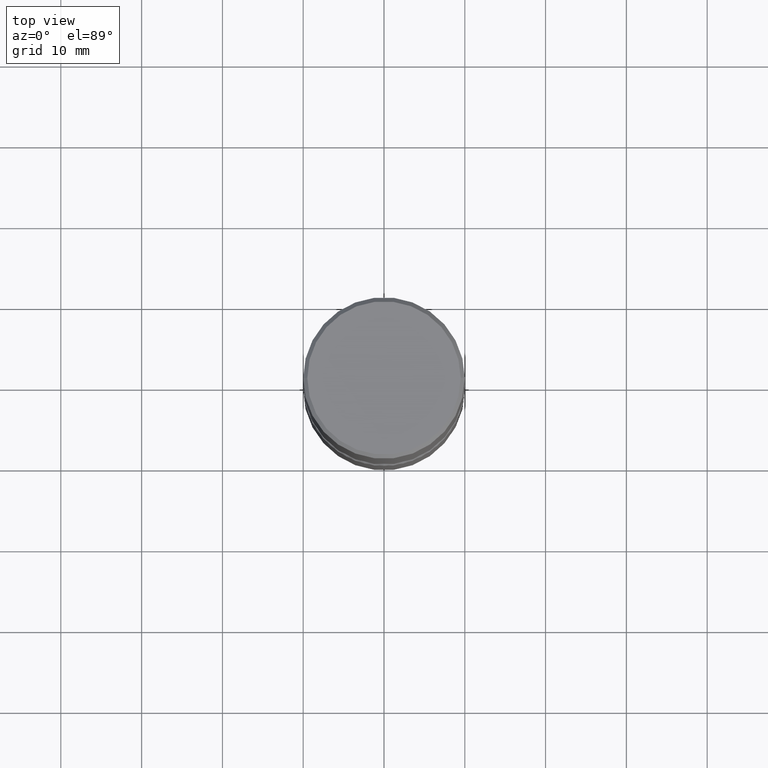
[diagram: clean part render]
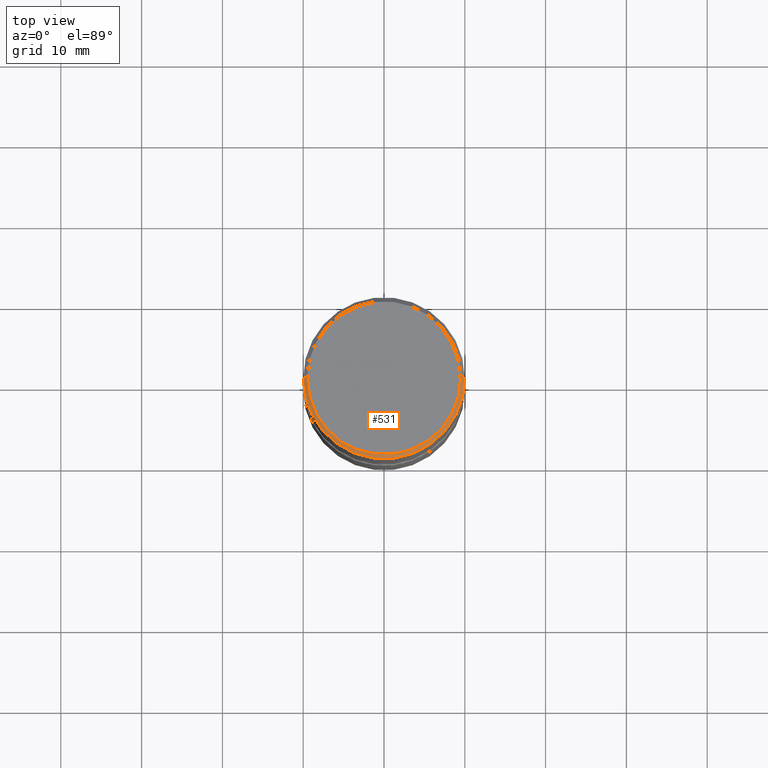
[diagram: same view with one face highlighted and labeled with its STEP entity id]
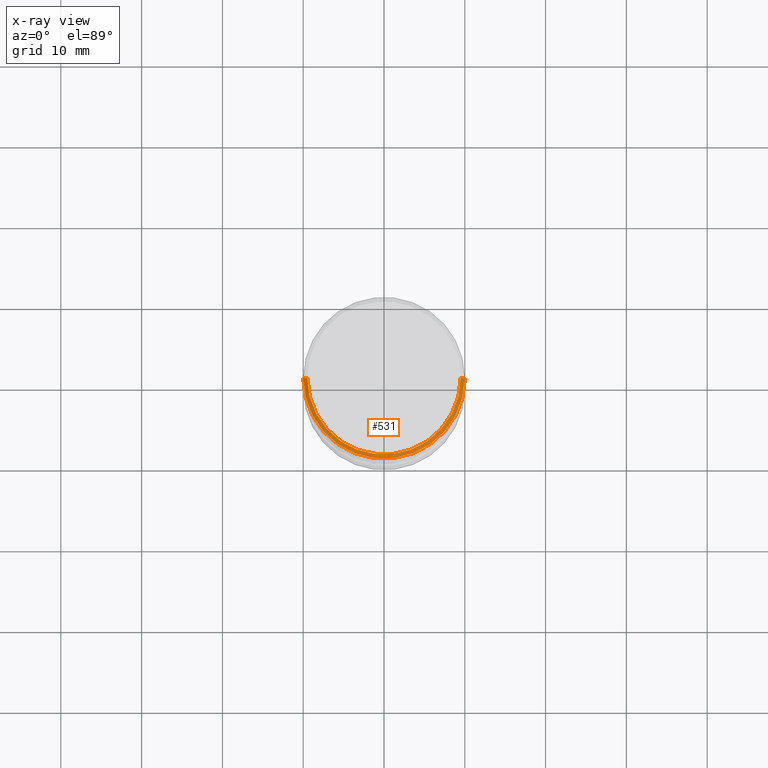
[diagram: x-ray of the same camera — body ghosted, the highlighted face saturated]
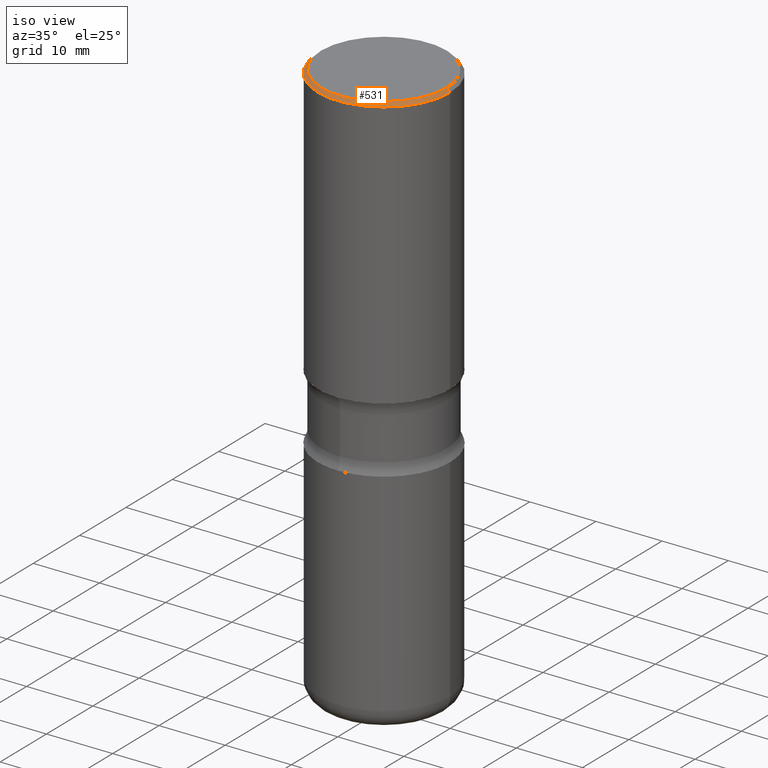
[diagram: same view with one face highlighted and labeled with its STEP entity id]
A machine part, top view. The second image highlights one B-rep face of the part: STEP entity #531.
The next image is the same camera in x-ray: the body ghosted, the highlighted face saturated — about 0% of this face is hidden behind the body in this view.
A second angle (iso view) of the same face is appended — the face is thin or edge-on in the first view.
In plain terms, the highlighted conical surface has half-angle 45 deg.
Its self-contained STEP definition (entity closure, byte-faithful):
#14 = AXIS2_PLACEMENT_3D ( 'NONE', #417, #413, #32 ) ;
#22 = CARTESIAN_POINT ( 'NONE',  ( -0.3737000000000003097, 2.644447966039791425E-15, -1.280553747031960567E-17 ) ) ;
#26 = EDGE_CURVE ( 'NONE', #301, #404, #297, .T. ) ;
#32 = DIRECTION ( 'NONE',  ( 1.000000000000000000, -6.982962677686266711E-15, 4.876212485538971195E-29 ) ) ;
#35 = LINE ( 'NONE', #111, #80 ) ;
#63 = DIRECTION ( 'NONE',  ( 0.7071067811865464625, -7.319954787623252890E-15, -0.7071067811865486830 ) ) ;
#68 = LINE ( 'NONE', #393, #354 ) ;
#80 = VECTOR ( 'NONE', #412, 39.37007874015748143 ) ;
#94 = DIRECTION ( 'NONE',  ( 1.000000000000000000, -6.982962677686266711E-15, 0.000000000000000000 ) ) ;
#111 = CARTESIAN_POINT ( 'NONE',  ( -0.3937000000000003830, 2.679362779428222679E-15, -0.02000000000000013572 ) ) ;
#119 = VERTEX_POINT ( 'NONE', #174 ) ;
#144 = EDGE_CURVE ( 'NONE', #119, #226, #536, .T. ) ;
#147 = ORIENTED_EDGE ( 'NONE', *, *, #144, .T. ) ;
#174 = CARTESIAN_POINT ( 'NONE',  ( -0.3937000000000003830, 2.679362779428222679E-15, -0.02000000000000013572 ) ) ;
#178 = AXIS2_PLACEMENT_3D ( 'NONE', #304, #218, #94 ) ;
#180 = AXIS2_PLACEMENT_3D ( 'NONE', #542, #501, #374 ) ;
#211 = FACE_OUTER_BOUND ( 'NONE', #540, .T. ) ;
#218 = DIRECTION ( 'NONE',  ( -2.445468806185136597E-29, 3.491481338843145583E-15, 1.000000000000000000 ) ) ;
#226 = VERTEX_POINT ( 'NONE', #560 ) ;
#283 = ORIENTED_EDGE ( 'NONE', *, *, #447, .T. ) ;
#297 = CIRCLE ( 'NONE', #14, 0.3737000000000003097 ) ;
#301 = VERTEX_POINT ( 'NONE', #22 ) ;
#304 = CARTESIAN_POINT ( 'NONE',  ( 4.890937612370306439E-31, -6.982962677686338448E-17, -0.02000000000000013572 ) ) ;
#314 = ORIENTED_EDGE ( 'NONE', *, *, #391, .F. ) ;
#354 = VECTOR ( 'NONE', #63, 39.37007874015748143 ) ;
#371 = ORIENTED_EDGE ( 'NONE', *, *, #26, .F. ) ;
#374 = DIRECTION ( 'NONE',  ( -1.000000000000000000, 6.982962677686266711E-15, 0.000000000000000000 ) ) ;
#391 = EDGE_CURVE ( 'NONE', #404, #226, #68, .T. ) ;
#393 = CARTESIAN_POINT ( 'NONE',  ( 0.3937000000000003830, -2.770807688499518100E-15, -0.02000000000000013572 ) ) ;
#404 = VERTEX_POINT ( 'NONE', #442 ) ;
#412 = DIRECTION ( 'NONE',  ( -0.7071067811865464625, 2.468850131082245228E-15, -0.7071067811865486830 ) ) ;
#413 = DIRECTION ( 'NONE',  ( -2.445468806185136597E-29, 3.491481338843145583E-15, 1.000000000000000000 ) ) ;
#417 = CARTESIAN_POINT ( 'NONE',  ( 3.131554243005659264E-46, -4.471029511141341874E-32, -1.280553747030123384E-17 ) ) ;
#442 = CARTESIAN_POINT ( 'NONE',  ( 0.3737000000000003097, -2.667287895133370725E-15, -1.280553747028278189E-17 ) ) ;
#447 = EDGE_CURVE ( 'NONE', #301, #119, #35, .T. ) ;
#498 = CONICAL_SURFACE ( 'NONE', #180, 0.3937000000000003830, 0.7853981633974467247 ) ;
#501 = DIRECTION ( 'NONE',  ( 2.445468806185136597E-29, -3.491481338843145583E-15, -1.000000000000000000 ) ) ;
#531 = ADVANCED_FACE ( 'NONE', ( #211 ), #498, .T. ) ;
#536 = CIRCLE ( 'NONE', #178, 0.3937000000000003830 ) ;
#540 = EDGE_LOOP ( 'NONE', ( #314, #371, #283, #147 ) ) ;
#542 = CARTESIAN_POINT ( 'NONE',  ( 4.890937612370306439E-31, -6.982962677686338448E-17, -0.02000000000000013572 ) ) ;
#560 = CARTESIAN_POINT ( 'NONE',  ( 0.3937000000000003830, -2.770807688499518100E-15, -0.02000000000000013572 ) ) ;